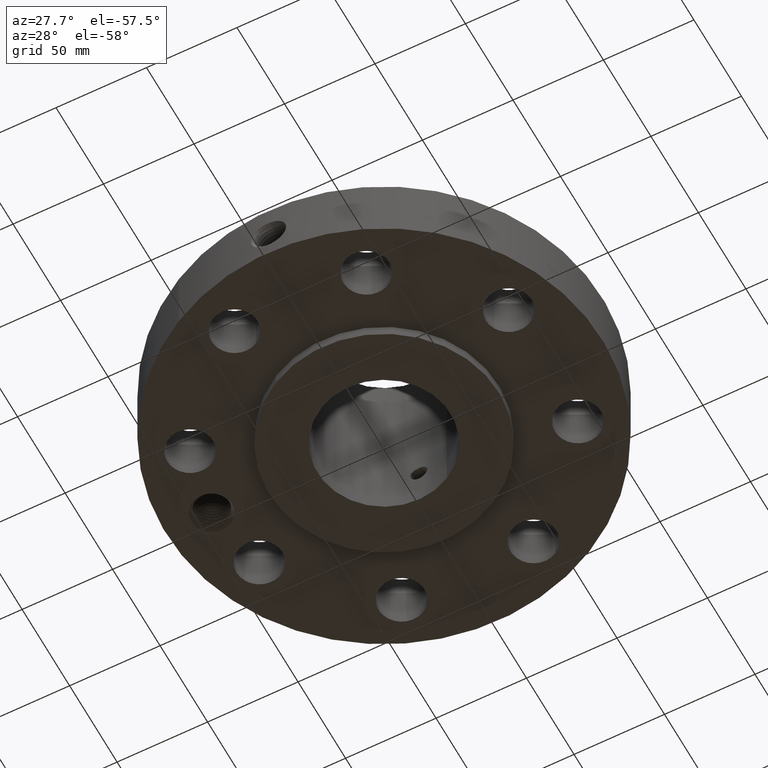
[diagram: clean part render]
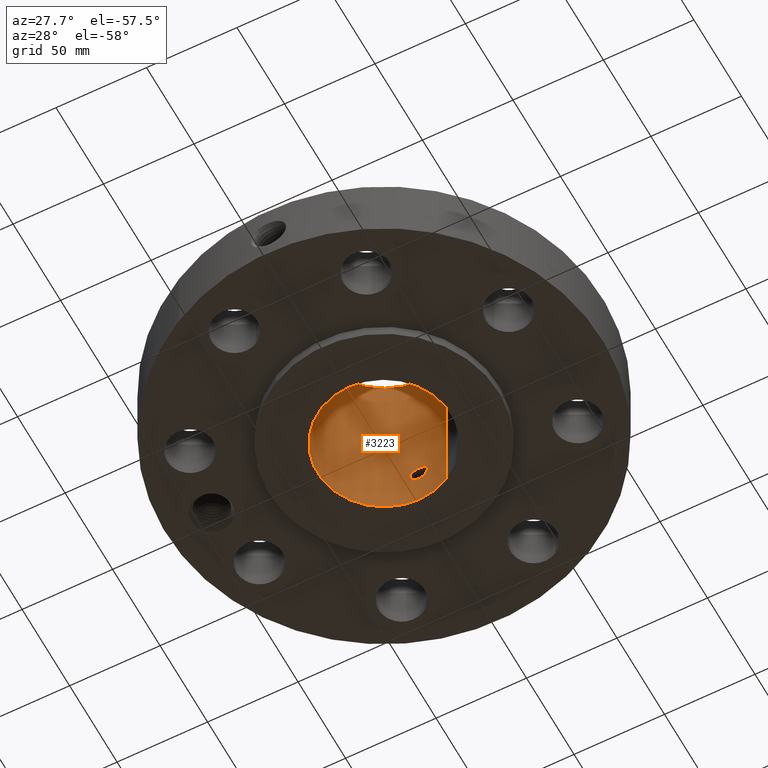
[diagram: same view with one face highlighted and labeled with its STEP entity id]
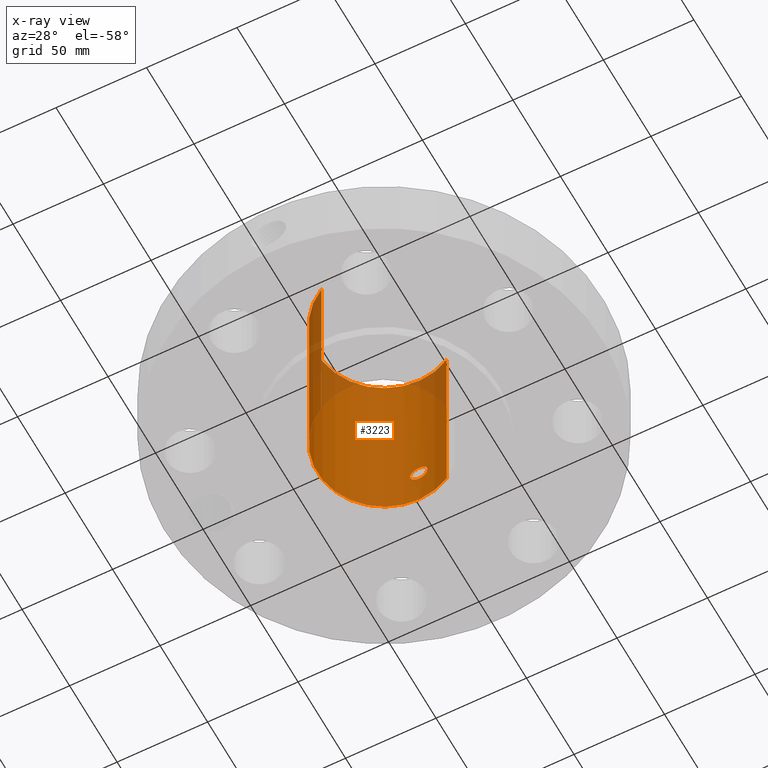
[diagram: x-ray of the same camera — body ghosted, the highlighted face saturated]
A machine part, auxiliary view. The second image highlights one B-rep face of the part: STEP entity #3223.
The next image is the same camera in x-ray: the body ghosted, the highlighted face saturated — about 14% of this face is hidden behind the body in this view.
In plain terms, the highlighted cylindrical surface (partial cylindrical patch) has radius 36.83 mm, axis along (0, 0, -1).
Its self-contained STEP definition (entity closure, byte-faithful):
#2341=AXIS2_PLACEMENT_3D('Circle Axis2P3D',#2339,#2340,$) ;
#3100=AXIS2_PLACEMENT_3D('Cylinder Axis2P3D',#3097,#3098,#3099) ;
#3172=AXIS2_PLACEMENT_3D('Circle Axis2P3D',#3170,#3171,$) ;
#2334=CARTESIAN_POINT('Vertex',(0.695167030979,1.27249471475,-3.35689481461E-015)) ;
#2336=CARTESIAN_POINT('Vertex',(-0.695167030979,-1.27249471475,-3.35689481461E-015)) ;
#2339=CARTESIAN_POINT('Axis2P3D Location',(0.,0.,0.)) ;
#3097=CARTESIAN_POINT('Axis2P3D Location',(0.,0.,2.12500000001)) ;
#3106=CARTESIAN_POINT('Vertex',(0.695167030979,1.27249471475,4.25000000002)) ;
#3108=CARTESIAN_POINT('Vertex',(-0.695167030979,-1.27249471475,4.25000000002)) ;
#3111=CARTESIAN_POINT('Line Origine',(0.695167030979,1.27249471475,2.12500000001)) ;
#3116=CARTESIAN_POINT('Line Origine',(-0.695167030979,-1.27249471475,2.12500000001)) ;
#3170=CARTESIAN_POINT('Axis2P3D Location',(0.,0.,4.25000000002)) ;
#3182=CARTESIAN_POINT('Control Point',(0.164546730355,1.44063332377,1.02989228849)) ;
#3183=CARTESIAN_POINT('Control Point',(0.153731070916,1.44186867031,1.0496902203)) ;
#3184=CARTESIAN_POINT('Control Point',(0.139944075101,1.4433405746,1.0678501142)) ;
#3185=CARTESIAN_POINT('Control Point',(0.123510243055,1.44489924446,1.08378933192)) ;
#3186=CARTESIAN_POINT('Control Point',(0.0771457667566,1.44849158589,1.11680313088)) ;
#3187=CARTESIAN_POINT('Control Point',(0.0211416426426,1.45046278414,1.13099774423)) ;
#3188=CARTESIAN_POINT('Control Point',(-0.0138877540645,1.45055904578,1.13166367444)) ;
#3189=CARTESIAN_POINT('Control Point',(-0.0704180054569,1.4488559579,1.11959366782)) ;
#3190=CARTESIAN_POINT('Control Point',(-0.118016251887,1.44536877231,1.08833659058)) ;
#3191=CARTESIAN_POINT('Control Point',(-0.13505095704,1.44381724598,1.07301259639)) ;
#3192=CARTESIAN_POINT('Control Point',(-0.174424603885,1.43973532201,1.02499594327)) ;
#3193=CARTESIAN_POINT('Control Point',(-0.192227243459,1.43719597583,0.964023576831)) ;
#3194=CARTESIAN_POINT('Control Point',(-0.192994709915,1.43707883877,0.923187725843)) ;
#3195=CARTESIAN_POINT('Control Point',(-0.18318057688,1.43850499696,0.884216738788)) ;
#3196=CARTESIAN_POINT('Control Point',(-0.164546730355,1.44063332377,0.850107711515)) ;
#3197=CARTESIAN_POINT('Vertex',(0.164546730355,1.44063332377,1.02989228849)) ;
#3199=CARTESIAN_POINT('Vertex',(-0.164546730355,1.44063332377,0.850107711515)) ;
#3203=CARTESIAN_POINT('Control Point',(-0.164546730355,1.44063332377,0.850107711515)) ;
#3204=CARTESIAN_POINT('Control Point',(-0.153731070919,1.44186867031,0.830309779714)) ;
#3205=CARTESIAN_POINT('Control Point',(-0.139944075108,1.4433405746,0.812149885818)) ;
#3206=CARTESIAN_POINT('Control Point',(-0.123510243047,1.44489924446,0.796210668086)) ;
#3207=CARTESIAN_POINT('Control Point',(-0.077145766752,1.44849158589,0.763196869127)) ;
#3208=CARTESIAN_POINT('Control Point',(-0.0211416426433,1.45046278414,0.74900225578)) ;
#3209=CARTESIAN_POINT('Control Point',(0.0138877540616,1.45055904578,0.748336325563)) ;
#3210=CARTESIAN_POINT('Control Point',(0.0704180054486,1.4488559579,0.760406332182)) ;
#3211=CARTESIAN_POINT('Control Point',(0.118016251876,1.44536877231,0.791663409416)) ;
#3212=CARTESIAN_POINT('Control Point',(0.135050957046,1.44381724598,0.80698740363)) ;
#3213=CARTESIAN_POINT('Control Point',(0.174424603892,1.439735322,0.855004056753)) ;
#3214=CARTESIAN_POINT('Control Point',(0.192227243464,1.43719597583,0.915976423194)) ;
#3215=CARTESIAN_POINT('Control Point',(0.19299470992,1.43707883877,0.956812274146)) ;
#3216=CARTESIAN_POINT('Control Point',(0.183180576885,1.43850499696,0.995783261212)) ;
#3217=CARTESIAN_POINT('Control Point',(0.164546730355,1.44063332377,1.02989228849)) ;
#2340=DIRECTION('Axis2P3D Direction',(0.,0.,-0.0393700787402)) ;
#3098=DIRECTION('Axis2P3D Direction',(0.,0.,-0.0393700787402)) ;
#3099=DIRECTION('Axis2P3D XDirection',(-0.0188750212049,-0.0345504945626,0.)) ;
#3112=DIRECTION('Vector Direction',(0.,0.,-0.0393700787402)) ;
#3117=DIRECTION('Vector Direction',(0.,0.,-0.0393700787402)) ;
#3171=DIRECTION('Axis2P3D Direction',(0.,0.,-0.0393700787402)) ;
#3113=VECTOR('Line Direction',#3112,0.0393700787402) ;
#3118=VECTOR('Line Direction',#3117,0.0393700787402) ;
#3176=ORIENTED_EDGE('',*,*,#3174,.F.) ;
#3177=ORIENTED_EDGE('',*,*,#3120,.T.) ;
#3178=ORIENTED_EDGE('',*,*,#2343,.T.) ;
#3179=ORIENTED_EDGE('',*,*,#3115,.F.) ;
#3220=ORIENTED_EDGE('',*,*,#3201,.F.) ;
#3221=ORIENTED_EDGE('',*,*,#3218,.F.) ;
#3222=FACE_BOUND('',#3219,.T.) ;
#3223=ADVANCED_FACE('PartBody',(#3180,#3222),#3101,.F.) ;
#3181=B_SPLINE_CURVE_WITH_KNOTS('',5,(#3182,#3183,#3184,#3185,#3186,#3187,#3188,#3189,#3190,#3191,#3192,#3193,#3194,#3195,#3196),.UNSPECIFIED.,.F.,.U.,(6,3,3,3,6),(0.,4.05789415058,10.1286634859,14.1897420029,21.1809178291),.UNSPECIFIED.) ;
#3202=B_SPLINE_CURVE_WITH_KNOTS('',5,(#3203,#3204,#3205,#3206,#3207,#3208,#3209,#3210,#3211,#3212,#3213,#3214,#3215,#3216,#3217),.UNSPECIFIED.,.F.,.U.,(6,3,3,3,6),(0.,4.05789414952,10.1286634849,14.1897420008,21.1809178288),.UNSPECIFIED.) ;
#2342=CIRCLE('generated circle',#2341,1.45000000001) ;
#3173=CIRCLE('generated circle',#3172,1.45000000001) ;
#3101=CYLINDRICAL_SURFACE('generated cylinder',#3100,1.45000000001) ;
#2343=EDGE_CURVE('',#2337,#2335,#2342,.T.) ;
#3115=EDGE_CURVE('',#3107,#2335,#3114,.T.) ;
#3120=EDGE_CURVE('',#3109,#2337,#3119,.T.) ;
#3174=EDGE_CURVE('',#3109,#3107,#3173,.T.) ;
#3201=EDGE_CURVE('',#3198,#3200,#3181,.T.) ;
#3218=EDGE_CURVE('',#3200,#3198,#3202,.T.) ;
#3175=EDGE_LOOP('',(#3176,#3177,#3178,#3179)) ;
#3219=EDGE_LOOP('',(#3220,#3221)) ;
#3180=FACE_OUTER_BOUND('',#3175,.T.) ;
#3114=LINE('Line',#3111,#3113) ;
#3119=LINE('Line',#3116,#3118) ;
#2335=VERTEX_POINT('',#2334) ;
#2337=VERTEX_POINT('',#2336) ;
#3107=VERTEX_POINT('',#3106) ;
#3109=VERTEX_POINT('',#3108) ;
#3198=VERTEX_POINT('',#3197) ;
#3200=VERTEX_POINT('',#3199) ;